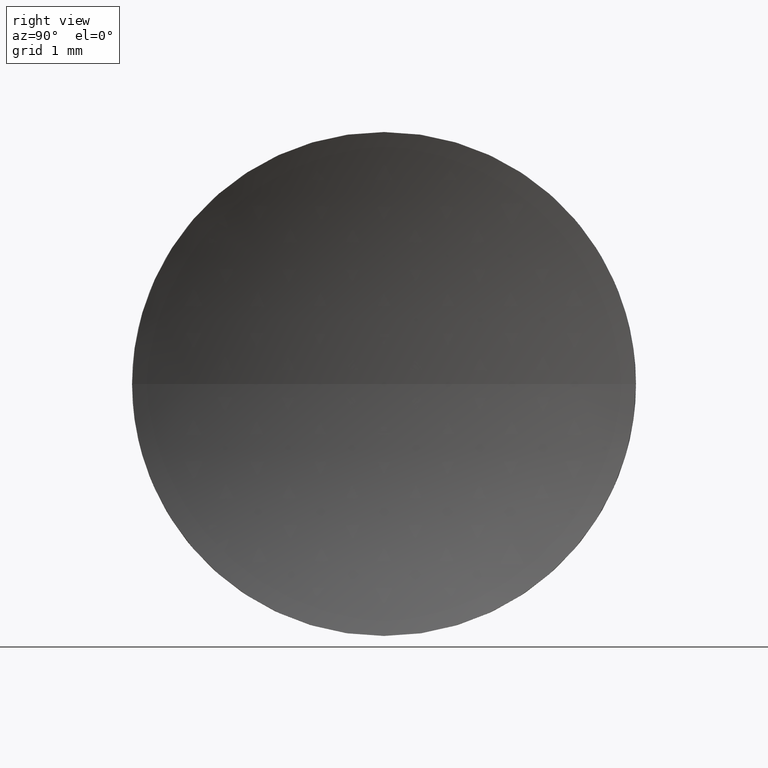
[diagram: clean part render]
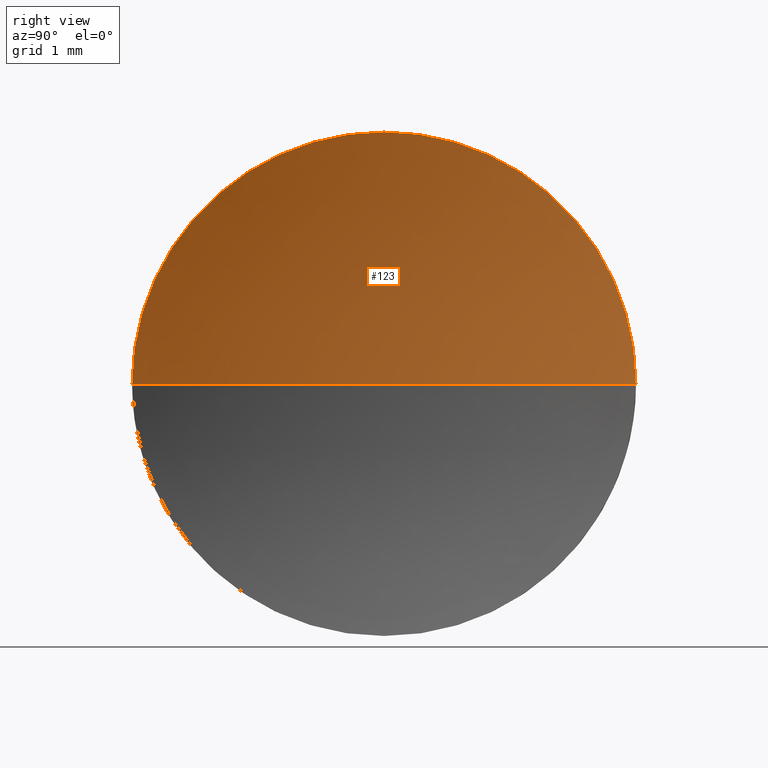
[diagram: same view with one face highlighted and labeled with its STEP entity id]
A machine part, right view. The second image highlights one B-rep face of the part: STEP entity #123.
In plain terms, the highlighted spherical surface has radius 9.17 mm.
Its self-contained STEP definition (entity closure, byte-faithful):
#2 = DIRECTION ( 'NONE',  ( -1.000000000000000000, -0.0000000000000000000, -0.0000000000000000000 ) ) ;
#1 = CIRCLE ( 'NONE', #150, 3.149999999999998100 ) ;
#10 = CIRCLE ( 'NONE', #122, 9.170000000000005300 ) ;
#19 = DIRECTION ( 'NONE',  ( 0.0000000000000000000, -1.000000000000000000, -1.224646799147353200E-016 ) ) ;
#28 = EDGE_CURVE ( 'NONE', #67, #45, #55, .T. ) ;
#29 = CARTESIAN_POINT ( 'NONE',  ( 24.25888386169071300, 13.03112609140304000, 0.0000000000000000000 ) ) ;
#37 = CARTESIAN_POINT ( 'NONE',  ( 24.25888386169071300, 13.03112609140304000, 0.0000000000000000000 ) ) ;
#39 = CARTESIAN_POINT ( 'NONE',  ( 32.87087550125935600, 13.03112609140304600, 0.0000000000000000000 ) ) ;
#43 = CIRCLE ( 'NONE', #104, 9.170000000000005300 ) ;
#45 = VERTEX_POINT ( 'NONE', #126 ) ;
#49 = VERTEX_POINT ( 'NONE', #82 ) ;
#50 = DIRECTION ( 'NONE',  ( 0.0000000000000000000, 0.0000000000000000000, 1.000000000000000000 ) ) ;
#54 = ORIENTED_EDGE ( 'NONE', *, *, #144, .F. ) ;
#55 = CIRCLE ( 'NONE', #91, 3.149999999999998100 ) ;
#56 = CARTESIAN_POINT ( 'NONE',  ( 24.25888386169071300, 9.881126091403048800, 0.0000000000000000000 ) ) ;
#62 = DIRECTION ( 'NONE',  ( 0.0000000000000000000, -1.000000000000000000, 0.0000000000000000000 ) ) ;
#67 = VERTEX_POINT ( 'NONE', #56 ) ;
#72 = DIRECTION ( 'NONE',  ( -1.000000000000000000, 0.0000000000000000000, 0.0000000000000000000 ) ) ;
#82 = CARTESIAN_POINT ( 'NONE',  ( 24.25888386169071300, 16.18112609140303300, 3.857637417314151800E-016 ) ) ;
#83 = ORIENTED_EDGE ( 'NONE', *, *, #138, .F. ) ;
#86 = ORIENTED_EDGE ( 'NONE', *, *, #110, .T. ) ;
#88 = DIRECTION ( 'NONE',  ( 0.0000000000000000000, 0.0000000000000000000, -1.000000000000000000 ) ) ;
#91 = AXIS2_PLACEMENT_3D ( 'NONE', #29, #2, #94 ) ;
#94 = DIRECTION ( 'NONE',  ( 0.0000000000000000000, 0.0000000000000000000, 1.000000000000000000 ) ) ;
#96 = VERTEX_POINT ( 'NONE', #117 ) ;
#98 = FACE_OUTER_BOUND ( 'NONE', #166, .T. ) ;
#99 = DIRECTION ( 'NONE',  ( 0.0000000000000000000, 0.0000000000000000000, 1.000000000000000000 ) ) ;
#104 = AXIS2_PLACEMENT_3D ( 'NONE', #39, #88, #72 ) ;
#110 = EDGE_CURVE ( 'NONE', #67, #96, #43, .T. ) ;
#117 = CARTESIAN_POINT ( 'NONE',  ( 23.70087550125935000, 13.03112609140304600, 0.0000000000000000000 ) ) ;
#122 = AXIS2_PLACEMENT_3D ( 'NONE', #176, #178, #19 ) ;
#123 = ADVANCED_FACE ( 'NONE', ( #98 ), #145, .F. ) ;
#126 = CARTESIAN_POINT ( 'NONE',  ( 24.25888386169071300, 13.03112609140304000, 3.149999999999998100 ) ) ;
#135 = AXIS2_PLACEMENT_3D ( 'NONE', #143, #99, #62 ) ;
#138 = EDGE_CURVE ( 'NONE', #49, #96, #10, .T. ) ;
#143 = CARTESIAN_POINT ( 'NONE',  ( 32.87087550125935600, 13.03112609140304600, 0.0000000000000000000 ) ) ;
#144 = EDGE_CURVE ( 'NONE', #45, #49, #1, .T. ) ;
#145 = SPHERICAL_SURFACE ( 'NONE', #135, 9.170000000000005300 ) ;
#150 = AXIS2_PLACEMENT_3D ( 'NONE', #37, #157, #50 ) ;
#157 = DIRECTION ( 'NONE',  ( -1.000000000000000000, -0.0000000000000000000, -0.0000000000000000000 ) ) ;
#166 = EDGE_LOOP ( 'NONE', ( #83, #54, #179, #86 ) ) ;
#176 = CARTESIAN_POINT ( 'NONE',  ( 32.87087550125935600, 13.03112609140304600, 0.0000000000000000000 ) ) ;
#178 = DIRECTION ( 'NONE',  ( 0.0000000000000000000, -1.224646799147353200E-016, 1.000000000000000000 ) ) ;
#179 = ORIENTED_EDGE ( 'NONE', *, *, #28, .F. ) ;